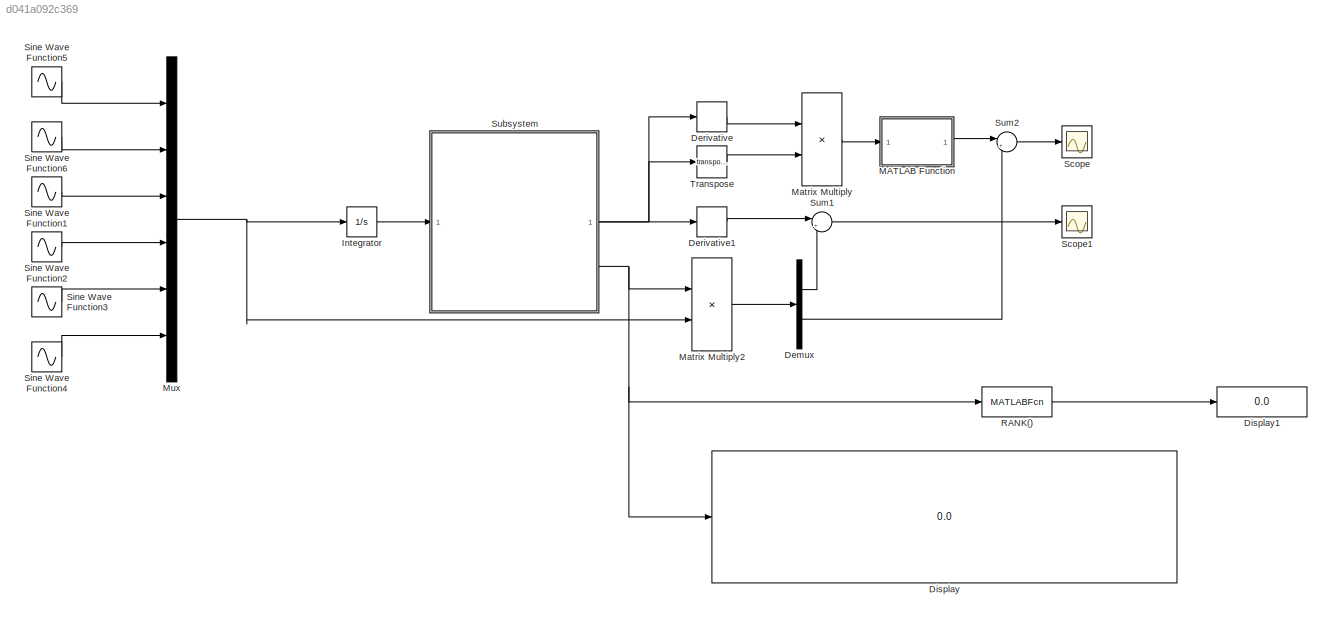
MODEL slx_d041a092c369
KIND model
CONFIG AbsTol = auto
CONFIG EnableMultiTasking = off
CONFIG FixedStep = auto
CONFIG MaxStep = 1e-5
CONFIG MinStep = auto
CONFIG RelTol = 1e-3
CONFIG SampleTimeConstraint = Unconstrained
CONFIG SolverName = VariableStepAuto
CONFIG StartTime = 0.0
CONFIG StopTime = 10.0
BLOCK [Demux] Demux
  Outputs = 2
BLOCK [Derivative] Derivative
BLOCK [Derivative] Derivative1
BLOCK [Display] Display
  Decimation = 1
BLOCK [Display] Display1
  Decimation = 1
BLOCK [Integrator] Integrator
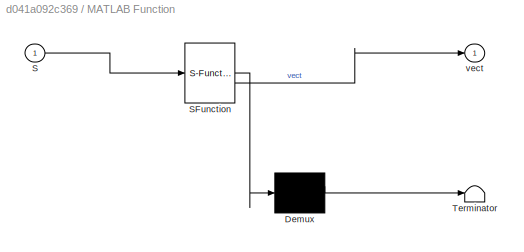
BLOCK [SubSystem] MATLAB Function
  ErrorFcn = Stateflow.Translate.translate
  LibrarySourceBlock = simulink/User-Defined\nFunctions/MATLAB Function
  PermitHierarchicalResolution = ExplicitOnly
  SFBlockType = MATLAB Function
  TreatAsAtomicUnit = on
BLOCK [Demux] MATLAB Function/ Demux 
  Outputs = 1
BLOCK [S-Function] MATLAB Function/ SFunction 
  EnableBusSupport = on
  FunctionName = sf_sfun
  PortCounts = [1 2]
  SFcnIsStateOwnerBlock = off
  SFunctionDeploymentMode = off
  Tag = Stateflow S-Function 2
BLOCK [Terminator] MATLAB Function/ Terminator 
BLOCK [Inport] MATLAB Function/S
BLOCK [Outport] MATLAB Function/vect
BLOCK [Product] Matrix Multiply
  Multiplication = Matrix(*)
BLOCK [Product] Matrix Multiply2
  Multiplication = Matrix(*)
BLOCK [Mux] Mux
  DisplayOption = bar
  Inputs = 6
BLOCK [MATLABFcn] RANK()
  MATLABFcn = rank
BLOCK [Scope] Scope
  Floating = off
  NumInputPorts = 1
  ScopeSpecificationString = Simulink.scopes.TimeScopeBlockCfg('CurrentConfiguration', extmgr.ConfigurationSet(extmgr.Configuration('Core','General UI',true),extmgr.Configuration('Core','Source UI',true),extmgr.Configuration('Sources','WiredSimulink',true),extmgr.Configuration('Visuals','Time Domain',true,'SerializedDisplays',{struct('MinYLimReal','-0.000012','MaxYLimReal','0.000009','YLabelReal','','MinYLimMag','0.000000','M...<+1381ch>
BLOCK [Scope] Scope1
  Floating = off
  NumInputPorts = 1
  ScopeSpecificationString = Simulink.scopes.TimeScopeBlockCfg('CurrentConfiguration', extmgr.ConfigurationSet(extmgr.Configuration('Core','General UI',true),extmgr.Configuration('Core','Source UI',true),extmgr.Configuration('Sources','WiredSimulink',true,'DataLoggingVariableName','ScopeData1'),extmgr.Configuration('Visuals','Time Domain',true,'SerializedDisplays',{struct('MinYLimReal','-0.0000034','MaxYLimReal','0.0000059','...<+1428ch>
BLOCK [Sin] Sine Wave Function1
  SampleTime = 0
  VectorParams1D = off
BLOCK [Sin] Sine Wave Function2
  SampleTime = 0
BLOCK [Sin] Sine Wave Function3
  SampleTime = 0
BLOCK [Sin] Sine Wave Function4
  SampleTime = 0
BLOCK [Sin] Sine Wave Function5
  SampleTime = 0
BLOCK [Sin] Sine Wave Function6
  SampleTime = 0
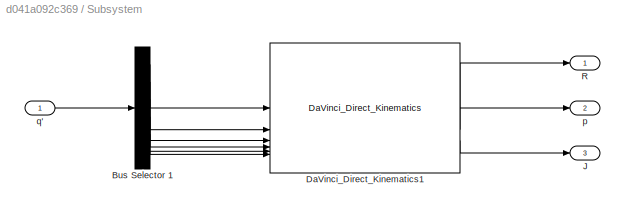
BLOCK [SubSystem] Subsystem
BLOCK [Demux] Subsystem/Bus Selector 1
  Outputs = 6
BLOCK [Reference] Subsystem/DaVinci_Direct_Kinematics1  REF=DaVinci_LibJ/DaVinci_Direct_Kinematics
  LibrarySourceBlock = simulink/User-Defined\nFunctions/MATLAB Function
  SourceBlock = DaVinci_LibJ/DaVinci_Direct_Kinematics
  SourceType = SubSystem
BLOCK [Outport] Subsystem/J
  Port = 3
BLOCK [Outport] Subsystem/R
BLOCK [Outport] Subsystem/p
  Port = 2
BLOCK [Inport] Subsystem/q'
BLOCK [Sum] Sum1
  Inputs = |+-
BLOCK [Sum] Sum2
  Inputs = |+-
BLOCK [Math] Transpose
  Operator = transpose
LINE Demux:1 -> Sum1:2
LINE Demux:2 -> Sum2:2
LINE Derivative1:1 -> Sum1:1
LINE Derivative:1 -> Matrix Multiply:1
LINE Integrator:1 -> Subsystem:1
LINE MATLAB Function:1 -> Sum2:1
LINE Matrix Multiply2:1 -> Demux:1
LINE Matrix Multiply:1 -> MATLAB Function:1
NET Mux:1 -> Integrator:1, Matrix Multiply2:2
LINE RANK():1 -> Display1:1
LINE Sine Wave Function1:1 -> Mux:3
LINE Sine Wave Function2:1 -> Mux:4
LINE Sine Wave Function3:1 -> Mux:5
LINE Sine Wave Function4:1 -> Mux:6
LINE Sine Wave Function5:1 -> Mux:1
LINE Sine Wave Function6:1 -> Mux:2
LINE Subsystem/Bus Selector 1:1 -> Subsystem/DaVinci_Direct_Kinematics1:1
LINE Subsystem/Bus Selector 1:2 -> Subsystem/DaVinci_Direct_Kinematics1:2
LINE Subsystem/Bus Selector 1:3 -> Subsystem/DaVinci_Direct_Kinematics1:3
LINE Subsystem/Bus Selector 1:4 -> Subsystem/DaVinci_Direct_Kinematics1:4
LINE Subsystem/Bus Selector 1:5 -> Subsystem/DaVinci_Direct_Kinematics1:5
LINE Subsystem/Bus Selector 1:6 -> Subsystem/DaVinci_Direct_Kinematics1:6
LINE Subsystem/DaVinci_Direct_Kinematics1:1 -> Subsystem/R:1
LINE Subsystem/DaVinci_Direct_Kinematics1:2 -> Subsystem/p:1
LINE Subsystem/DaVinci_Direct_Kinematics1:3 -> Subsystem/J:1
LINE Subsystem/q':1 -> Subsystem/Bus Selector 1:1
NET Subsystem:1 -> Derivative:1, Transpose:1
LINE Subsystem:2 -> Derivative1:1
NET Subsystem:3 -> Display:1, Matrix Multiply2:1, RANK():1
LINE Sum1:1 -> Scope1:1
LINE Sum2:1 -> Scope:1
LINE Transpose:1 -> Matrix Multiply:2
note: NET lines group one-source signal fan-out (src -> all destinations, sorted); 1:1 wires keep LINE
CHART MATLAB Function states=1 transitions=1
  STATE_LABEL 'eML_blk_kernel()'
  STATE_LABEL 'SCRIPT:\nfunction vect  = vec(S)\n% recebe a matrix anti-inversa que resulta do produto de R* com Rt\nvect = [S(3,2);S(1,3);S(2,1)];\nend'
CHART  states=0 transitions=0
